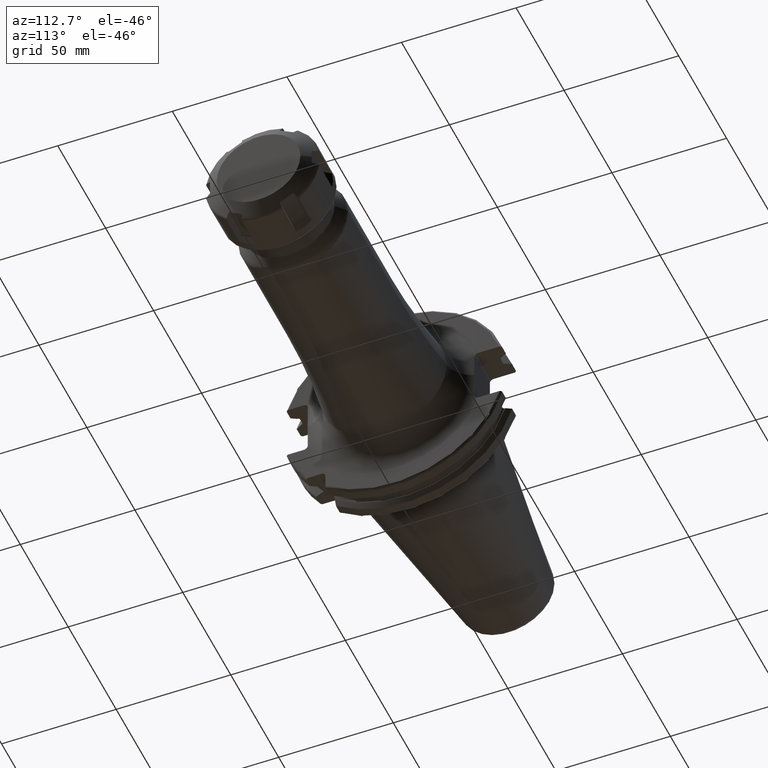
[diagram: clean part render]
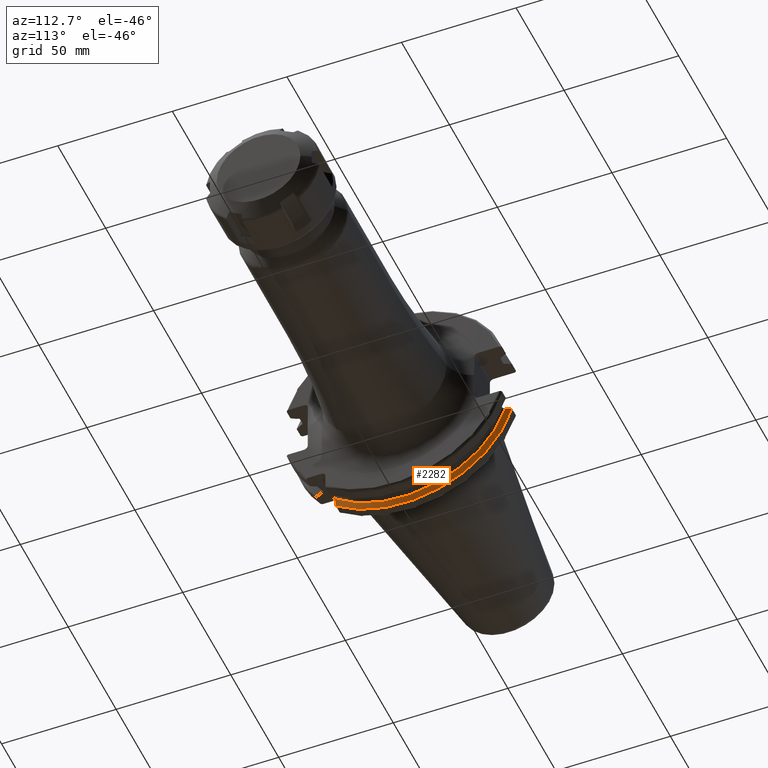
[diagram: same view with one face highlighted and labeled with its STEP entity id]
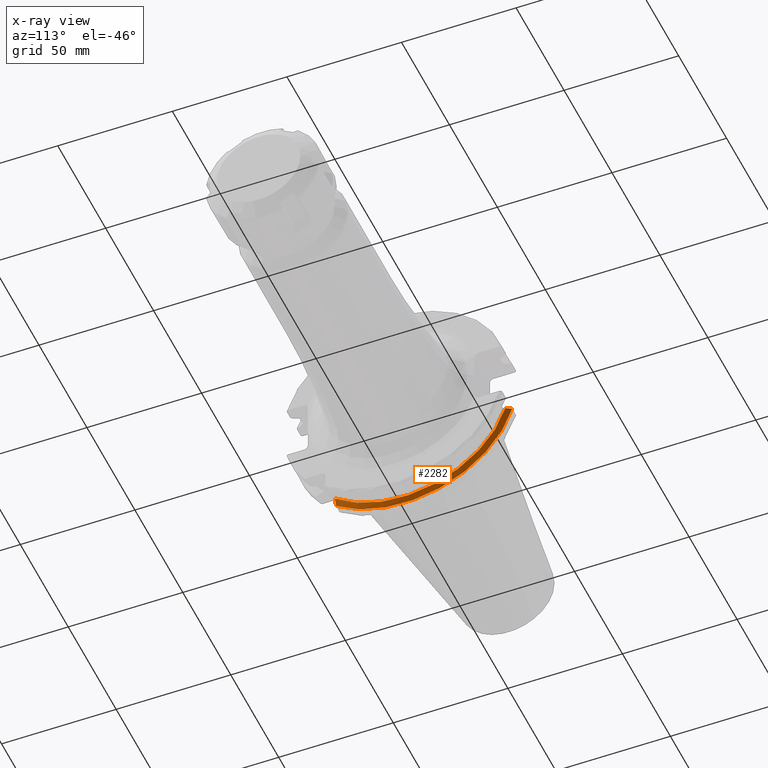
[diagram: x-ray of the same camera — body ghosted, the highlighted face saturated]
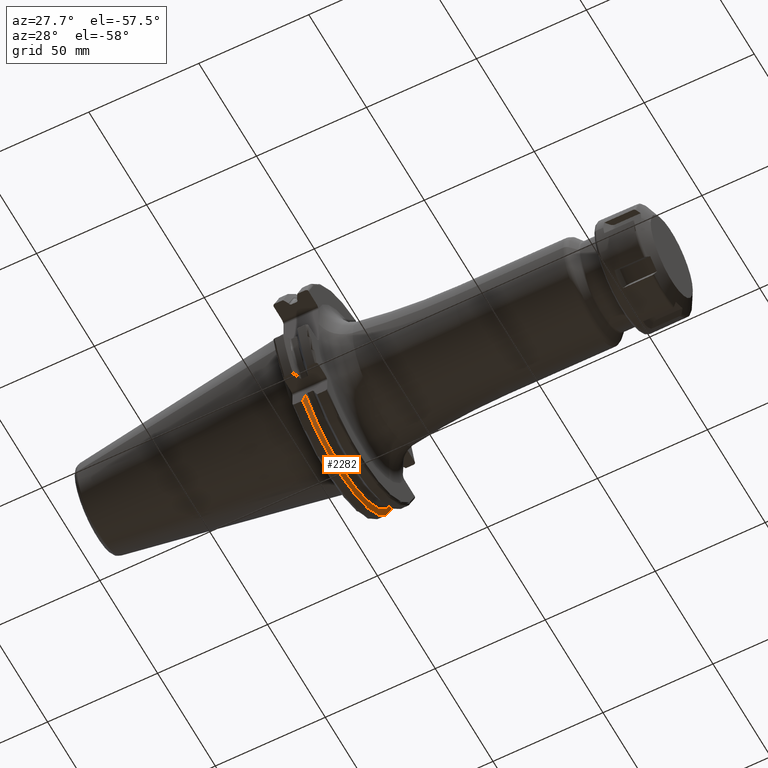
[diagram: same view with one face highlighted and labeled with its STEP entity id]
A machine part, auxiliary view. The second image highlights one B-rep face of the part: STEP entity #2282.
The next image is the same camera in x-ray: the body ghosted, the highlighted face saturated — about 0% of this face is hidden behind the body in this view.
A second angle (auxiliary view) of the same face is appended — the face is thin or edge-on in the first view.
In plain terms, the highlighted conical surface has half-angle 60 deg.
Its self-contained STEP definition (entity closure, byte-faithful):
#387=CARTESIAN_POINT('',(7.934621614173E0,0.E0,0.E0));
#388=DIRECTION('',(1.E0,0.E0,0.E0));
#389=DIRECTION('',(0.E0,-6.124647345473E-1,-7.904979120376E-1));
#390=AXIS2_PLACEMENT_3D('',#387,#388,#389);
#512=CARTESIAN_POINT('',(9.2625E0,4.460981716077E1,-1.29E1));
#513=CARTESIAN_POINT('',(9.118283773553E0,4.486984125009E1,-1.29E1));
#514=CARTESIAN_POINT('',(8.827633549554E0,4.539353719098E1,-1.29E1));
#515=CARTESIAN_POINT('',(8.385043355543E0,4.618996220278E1,-1.29E1));
#516=CARTESIAN_POINT('',(8.085504386120E0,4.672829507383E1,-1.29E1));
#517=CARTESIAN_POINT('',(7.934621614173E0,4.699929686974E1,-1.29E1));
#519=CARTESIAN_POINT('',(9.2625E0,-2.985E1,-3.557278857662E1));
#520=CARTESIAN_POINT('',(9.122796459387E0,-2.985E1,-3.588866659244E1));
#521=CARTESIAN_POINT('',(8.838204990616E0,-2.985E1,-3.652866450573E1));
#522=CARTESIAN_POINT('',(8.396067032347E0,-2.985E1,-3.751242476101E1));
#523=CARTESIAN_POINT('',(8.090246731407E0,-2.985E1,-3.818590359837E1));
#524=CARTESIAN_POINT('',(7.934621614173E0,-2.985E1,-3.852689198793E1));
#557=CARTESIAN_POINT('',(9.2625E0,0.E0,0.E0));
#558=DIRECTION('',(-1.E0,0.E0,0.E0));
#559=DIRECTION('',(0.E0,9.606411165078E-1,-2.777924499957E-1));
#560=AXIS2_PLACEMENT_3D('',#557,#558,#559);
#1464=CARTESIAN_POINT('',(9.2625E0,4.460981716077E1,-1.29E1));
#1466=VERTEX_POINT('',#1464);
#1508=VERTEX_POINT('',#517);
#1537=CARTESIAN_POINT('',(9.2625E0,-2.985E1,-3.557278857662E1));
#1538=VERTEX_POINT('',#1537);
#1654=VERTEX_POINT('',#524);
#2270=CARTESIAN_POINT('',(8.598560807087E0,0.E0,0.E0));
#2271=DIRECTION('',(-1.E0,0.E0,0.E0));
#2272=DIRECTION('',(0.E0,1.E0,0.E0));
#2273=AXIS2_PLACEMENT_3D('',#2270,#2271,#2272);
#2274=CONICAL_SURFACE('',#2273,4.758752358474E1,6.E1);
#2275=ORIENTED_EDGE('',*,*,#1858,.T.);
#2276=ORIENTED_EDGE('',*,*,#2121,.F.);
#2277=ORIENTED_EDGE('',*,*,#2220,.F.);
#2279=ORIENTED_EDGE('',*,*,#2278,.F.);
#2280=EDGE_LOOP('',(#2275,#2276,#2277,#2279));
#2281=FACE_OUTER_BOUND('',#2280,.F.);
#2282=ADVANCED_FACE('',(#2281),#2274,.T.);
#391=CIRCLE('',#390,4.87375E1);
#518=B_SPLINE_CURVE_WITH_KNOTS('',3,(#512,#513,#514,#515,#516,#517),
.UNSPECIFIED.,.F.,.F.,(4,1,1,4),(0.E0,3.333333333333E-1,6.666666666667E-1,1.E0),
.UNSPECIFIED.);
#525=B_SPLINE_CURVE_WITH_KNOTS('',3,(#519,#520,#521,#522,#523,#524),
.UNSPECIFIED.,.F.,.F.,(4,1,1,4),(0.E0,3.333333333333E-1,6.666666666667E-1,1.E0),
.UNSPECIFIED.);
#561=CIRCLE('',#560,4.643754716948E1);
#1858=EDGE_CURVE('',#1466,#1508,#518,.T.);
#2121=EDGE_CURVE('',#1654,#1508,#391,.T.);
#2220=EDGE_CURVE('',#1538,#1654,#525,.T.);
#2278=EDGE_CURVE('',#1466,#1538,#561,.T.);